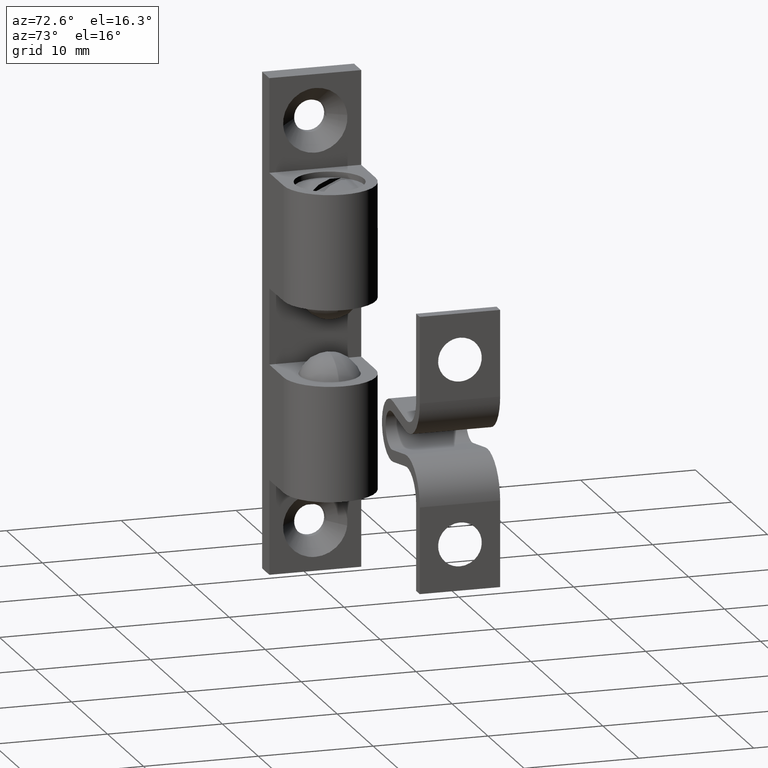
[diagram: clean part render]
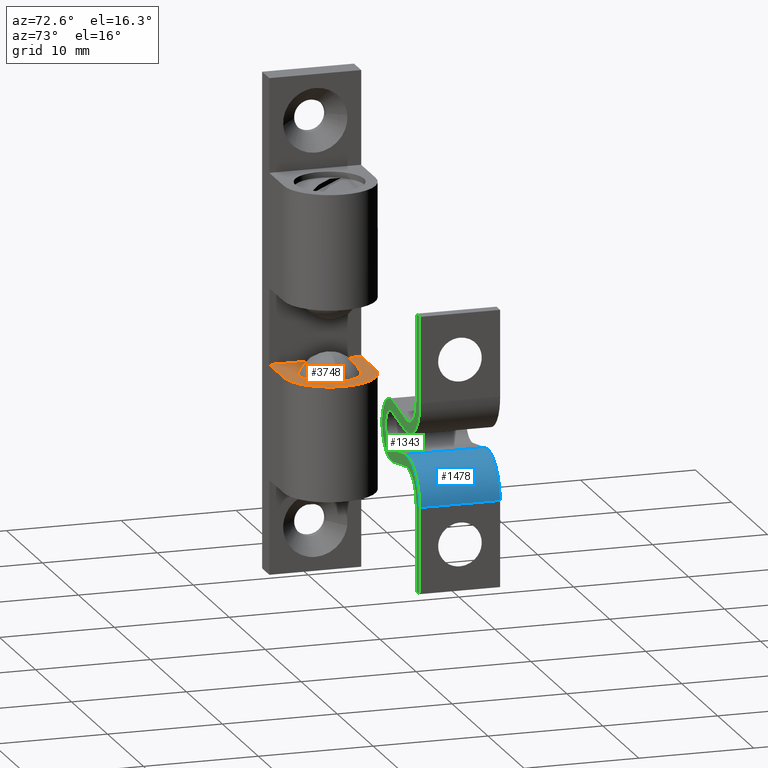
[diagram: same view with three faces highlighted in distinct colors, each labeled with its STEP entity id]
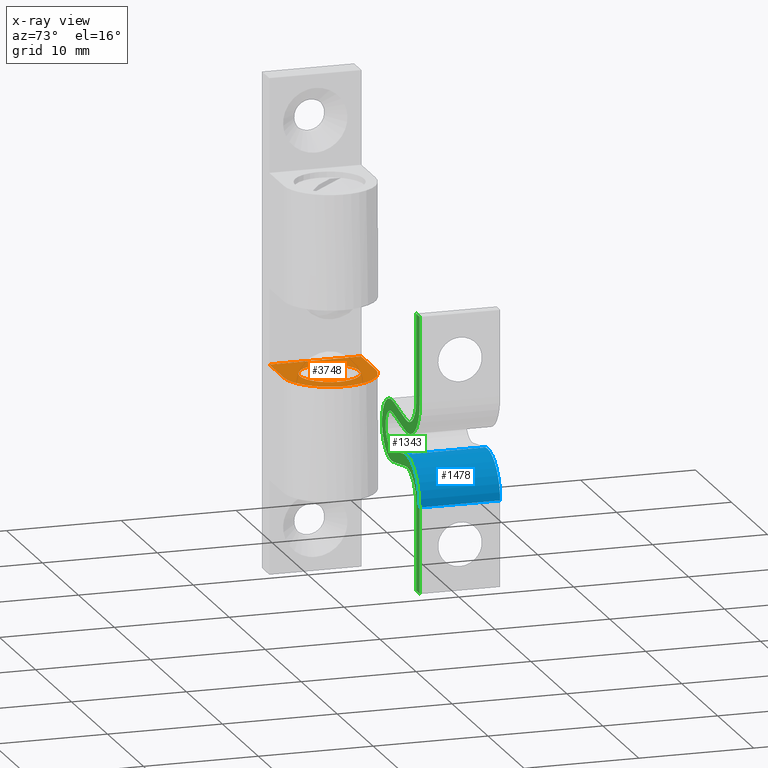
[diagram: x-ray of the same camera — body ghosted, the three highlighted faces saturated]
A machine part, auxiliary view with three faces highlighted in distinct colors.
The next image is the same camera in x-ray (body ghosted, the three faces saturated) — at least one of them is partly hidden behind the body in this view.
Their STEP definitions:

[orange] entity #3748 — the highlighted face is a freeform B-spline surface patch.
#3179=CARTESIAN_POINT('',(8.600153841602456,0.0,-3.300000000000000));
#3180=VERTEX_POINT('',#3179);
#3181=CARTESIAN_POINT('',(3.399846158397545,0.0,-3.300000000000000));
#3182=VERTEX_POINT('',#3181);
#3183=CARTESIAN_POINT('',(8.600153841602456,0.0,-3.300000000000000));
#3184=CARTESIAN_POINT('',(8.600153841602456,-2.600153841602455,-3.300000000000001));
#3185=CARTESIAN_POINT('',(6.0,-2.600153841602455,-3.300000000000000));
#3186=CARTESIAN_POINT('',(3.399846158397545,-2.600153841602455,-3.300000000000001));
#3187=CARTESIAN_POINT('',(3.399846158397545,0.0,-3.300000000000000));
#3195=(BOUNDED_CURVE()B_SPLINE_CURVE(2,(#3183,#3184,#3185,#3186,#3187),.UNSPECIFIED.,.F.,.U.)B_SPLINE_CURVE_WITH_KNOTS((3,2,3),(0.500000000000000,0.750000000000000,1.0),.UNSPECIFIED.)CURVE()GEOMETRIC_REPRESENTATION_ITEM()RATIONAL_B_SPLINE_CURVE((1.0,0.707106781186547,1.0,0.707106781186547,1.0))REPRESENTATION_ITEM(''));
#3196=EDGE_CURVE('',#3180,#3182,#3195,.T.);
#3198=CARTESIAN_POINT('',(3.399846158397545,0.0,-3.300000000000000));
#3199=CARTESIAN_POINT('',(3.399846158397545,2.600153841602455,-3.300000000000001));
#3200=CARTESIAN_POINT('',(6.0,2.600153841602455,-3.300000000000000));
#3201=CARTESIAN_POINT('',(8.600153841602456,2.600153841602455,-3.300000000000001));
#3202=CARTESIAN_POINT('',(8.600153841602456,0.0,-3.300000000000000));
#3210=(BOUNDED_CURVE()B_SPLINE_CURVE(2,(#3198,#3199,#3200,#3201,#3202),.UNSPECIFIED.,.F.,.U.)B_SPLINE_CURVE_WITH_KNOTS((3,2,3),(0.0,0.250000000000000,0.500000000000000),.UNSPECIFIED.)CURVE()GEOMETRIC_REPRESENTATION_ITEM()RATIONAL_B_SPLINE_CURVE((1.0,0.707106781186547,1.0,0.707106781186547,1.0))REPRESENTATION_ITEM(''));
#3211=EDGE_CURVE('',#3182,#3180,#3210,.T.);
#3352=CARTESIAN_POINT('',(2.0,4.0,-3.300000000000000));
#3353=VERTEX_POINT('',#3352);
#3366=CARTESIAN_POINT('',(2.0,-4.0,-3.300000000000000));
#3367=VERTEX_POINT('',#3366);
#3373=CARTESIAN_POINT('',(2.0,-4.0,-3.300000000000000));
#3374=CARTESIAN_POINT('',(2.0,4.0,-3.300000000000000));
#3375=QUASI_UNIFORM_CURVE('',1,(#3373,#3374),.UNSPECIFIED.,.F.,.U.);
#3376=EDGE_CURVE('',#3367,#3353,#3375,.T.);
#3435=CARTESIAN_POINT('',(6.0,4.0,-3.300000000000000));
#3436=VERTEX_POINT('',#3435);
#3437=CARTESIAN_POINT('',(6.0,-4.0,-3.300000000000000));
#3438=VERTEX_POINT('',#3437);
#3439=CARTESIAN_POINT('',(6.0,4.0,-3.300000000000000));
#3440=CARTESIAN_POINT('',(10.000000000000002,4.000000000000000,-3.300000000000000));
#3441=CARTESIAN_POINT('',(10.0,0.0,-3.300000000000000));
#3442=CARTESIAN_POINT('',(10.000000000000002,-4.000000000000000,-3.300000000000000));
#3443=CARTESIAN_POINT('',(6.0,-4.0,-3.300000000000000));
#3451=(BOUNDED_CURVE()B_SPLINE_CURVE(2,(#3439,#3440,#3441,#3442,#3443),.UNSPECIFIED.,.F.,.U.)B_SPLINE_CURVE_WITH_KNOTS((3,2,3),(0.0,0.500000000000000,1.0),.UNSPECIFIED.)CURVE()GEOMETRIC_REPRESENTATION_ITEM()RATIONAL_B_SPLINE_CURVE((1.0,0.707106781186548,1.0,0.707106781186548,1.0))REPRESENTATION_ITEM(''));
#3452=EDGE_CURVE('',#3436,#3438,#3451,.T.);
#3555=CARTESIAN_POINT('',(2.0,4.0,-3.300000000000000));
#3556=CARTESIAN_POINT('',(6.0,4.0,-3.300000000000000));
#3557=QUASI_UNIFORM_CURVE('',1,(#3555,#3556),.UNSPECIFIED.,.F.,.U.);
#3558=EDGE_CURVE('',#3353,#3436,#3557,.T.);
#3680=CARTESIAN_POINT('',(2.0,-4.0,-3.300000000000000));
#3681=CARTESIAN_POINT('',(6.0,-4.0,-3.300000000000000));
#3682=QUASI_UNIFORM_CURVE('',1,(#3680,#3681),.UNSPECIFIED.,.F.,.U.);
#3683=EDGE_CURVE('',#3367,#3438,#3682,.T.);
#3733=CARTESIAN_POINT('',(1.600400015505557,-4.399599984494448,-3.300000000000000));
#3734=CARTESIAN_POINT('',(10.399600199071070,-4.399599984494448,-3.300000000000000));
#3735=CARTESIAN_POINT('',(1.600400015505557,4.399600199071169,-3.300000000000000));
#3736=CARTESIAN_POINT('',(10.399600199071070,4.399600199071169,-3.300000000000000));
#3737=B_SPLINE_SURFACE_WITH_KNOTS('',1,1,((#3733,#3735),(#3734,#3736)),.UNSPECIFIED.,.F.,.F.,.U.,(2,2),(2,2),(0.0,8.799200183565510),(0.0,8.799200183565617),.UNSPECIFIED.);
#3738=ORIENTED_EDGE('',*,*,#3452,.F.);
#3739=ORIENTED_EDGE('',*,*,#3558,.F.);
#3740=ORIENTED_EDGE('',*,*,#3376,.F.);
#3741=ORIENTED_EDGE('',*,*,#3683,.T.);
#3742=EDGE_LOOP('',(#3738,#3739,#3740,#3741));
#3743=FACE_OUTER_BOUND('',#3742,.T.);
#3744=ORIENTED_EDGE('',*,*,#3211,.T.);
#3745=ORIENTED_EDGE('',*,*,#3196,.T.);
#3746=EDGE_LOOP('',(#3744,#3745));
#3747=FACE_BOUND('',#3746,.T.);
#3748=ADVANCED_FACE('',(#3743,#3747),#3737,.T.);

[blue] entity #1478 — the highlighted face is a freeform B-spline surface patch.
#1047=CARTESIAN_POINT('',(38.133523411589302,3.500000000000060,-1.046990580414320));
#1048=VERTEX_POINT('',#1047);
#1054=CARTESIAN_POINT('',(42.205122876470597,3.500000000000060,-4.500000000000000));
#1055=VERTEX_POINT('',#1054);
#1056=CARTESIAN_POINT('',(42.205122876470597,3.500000000000060,-4.500000000000000));
#1057=CARTESIAN_POINT('',(42.205122876470604,3.500000000000059,-2.879077764536162));
#1058=CARTESIAN_POINT('',(40.968903107954588,3.500000000000060,-1.830674417845910));
#1059=CARTESIAN_POINT('',(39.732683339438587,3.500000000000059,-0.782271071155658));
#1060=CARTESIAN_POINT('',(38.133523411589302,3.500000000000060,-1.046990580414322));
#1068=(BOUNDED_CURVE()B_SPLINE_CURVE(2,(#1056,#1057,#1058,#1059,#1060),.UNSPECIFIED.,.F.,.U.)B_SPLINE_CURVE_WITH_KNOTS((3,2,3),(0.0,0.500000000000000,1.0),.UNSPECIFIED.)CURVE()GEOMETRIC_REPRESENTATION_ITEM()RATIONAL_B_SPLINE_CURVE((1.0,0.907412351649615,1.0,0.907412351649615,1.0))REPRESENTATION_ITEM(''));
#1069=EDGE_CURVE('',#1055,#1048,#1068,.T.);
#1255=CARTESIAN_POINT('',(42.205122876470597,-3.499999999999835,-4.500000000000000));
#1256=VERTEX_POINT('',#1255);
#1262=CARTESIAN_POINT('',(38.133523411589302,-3.499999999999835,-1.046990580414320));
#1263=VERTEX_POINT('',#1262);
#1264=CARTESIAN_POINT('',(42.205122876470597,-3.499999999999835,-4.500000000000000));
#1265=CARTESIAN_POINT('',(42.205122876470604,-3.499999999999836,-2.879077764536162));
#1266=CARTESIAN_POINT('',(40.968903107954588,-3.499999999999835,-1.830674417845910));
#1267=CARTESIAN_POINT('',(39.732683339438587,-3.499999999999836,-0.782271071155658));
#1268=CARTESIAN_POINT('',(38.133523411589302,-3.499999999999835,-1.046990580414322));
#1276=(BOUNDED_CURVE()B_SPLINE_CURVE(2,(#1264,#1265,#1266,#1267,#1268),.UNSPECIFIED.,.F.,.U.)B_SPLINE_CURVE_WITH_KNOTS((3,2,3),(0.0,0.500000000000000,1.0),.UNSPECIFIED.)CURVE()GEOMETRIC_REPRESENTATION_ITEM()RATIONAL_B_SPLINE_CURVE((1.0,0.907412351649615,1.0,0.907412351649615,1.0))REPRESENTATION_ITEM(''));
#1277=EDGE_CURVE('',#1256,#1263,#1276,.T.);
#1446=CARTESIAN_POINT('',(38.133523411589302,-3.499999999999835,-1.046990580414320));
#1447=CARTESIAN_POINT('',(38.133523411589302,3.500000000000060,-1.046990580414320));
#1448=QUASI_UNIFORM_CURVE('',1,(#1446,#1447),.UNSPECIFIED.,.F.,.U.);
#1449=EDGE_CURVE('',#1263,#1048,#1448,.T.);
#1454=CARTESIAN_POINT('',(42.204989607195202,-3.674999999999833,-4.530542874244306));
#1455=CARTESIAN_POINT('',(42.204989607195202,3.679375000000058,-4.530542874244306));
#1456=CARTESIAN_POINT('',(42.243387262624502,-3.674999999999835,-0.130607370469302));
#1457=CARTESIAN_POINT('',(42.243387262624502,3.679375000000059,-0.130607370469302));
#1458=CARTESIAN_POINT('',(37.947584227687237,-3.674999999999833,-1.082963975080233));
#1459=CARTESIAN_POINT('',(37.947584227687237,3.679375000000058,-1.082963975080233));
#1467=(BOUNDED_SURFACE()B_SPLINE_SURFACE(1,2,((#1454,#1456,#1458),(#1455,#1457,#1459)),.UNSPECIFIED.,.F.,.F.,.U.)B_SPLINE_SURFACE_WITH_KNOTS((2,2),(3,3),(0.0,7.354374999999893),(0.0,6.752798371445969),.UNSPECIFIED.)GEOMETRIC_REPRESENTATION_ITEM()RATIONAL_B_SPLINE_SURFACE(((1.0,0.622514636637620,1.0),(1.0,0.622514636637620,1.0)))REPRESENTATION_ITEM('')SURFACE());
#1468=ORIENTED_EDGE('',*,*,#1069,.T.);
#1469=ORIENTED_EDGE('',*,*,#1449,.F.);
#1470=ORIENTED_EDGE('',*,*,#1277,.F.);
#1471=CARTESIAN_POINT('',(42.205122876470597,-3.499999999999835,-4.500000000000000));
#1472=CARTESIAN_POINT('',(42.205122876470597,3.500000000000060,-4.500000000000000));
#1473=QUASI_UNIFORM_CURVE('',1,(#1471,#1472),.UNSPECIFIED.,.F.,.U.);
#1474=EDGE_CURVE('',#1256,#1055,#1473,.T.);
#1475=ORIENTED_EDGE('',*,*,#1474,.T.);
#1476=EDGE_LOOP('',(#1468,#1469,#1470,#1475));
#1477=FACE_OUTER_BOUND('',#1476,.T.);
#1478=ADVANCED_FACE('',(#1477),#1467,.T.);

[green] entity #1343 — the highlighted face is a freeform B-spline surface patch.
#1160=CARTESIAN_POINT('',(31.180646921177171,-3.499999999999885,13.198799953483350));
#1161=CARTESIAN_POINT('',(42.729598970913777,-3.499999999999885,13.198799953483350));
#1162=CARTESIAN_POINT('',(31.180646921177171,-3.499999999999885,-13.198800597213509));
#1163=CARTESIAN_POINT('',(42.729598970913777,-3.499999999999885,-13.198800597213509));
#1164=B_SPLINE_SURFACE_WITH_KNOTS('',1,1,((#1160,#1162),(#1161,#1163)),.UNSPECIFIED.,.F.,.F.,.U.,(2,2),(2,2),(0.0,11.548952049736609),(0.0,26.397600550696851),.UNSPECIFIED.);
#1165=CARTESIAN_POINT('',(41.205122876470497,-3.499999999999835,12.0));
#1166=VERTEX_POINT('',#1165);
#1167=CARTESIAN_POINT('',(41.205122876470597,-3.499999999999835,4.500000000000000));
#1168=VERTEX_POINT('',#1167);
#1169=CARTESIAN_POINT('',(41.205122876470497,-3.499999999999835,12.0));
#1170=CARTESIAN_POINT('',(41.205122876470597,-3.499999999999835,4.500000000000000));
#1171=QUASI_UNIFORM_CURVE('',1,(#1169,#1170),.UNSPECIFIED.,.F.,.U.);
#1172=EDGE_CURVE('',#1166,#1168,#1171,.T.);
#1173=ORIENTED_EDGE('',*,*,#1172,.T.);
#1174=CARTESIAN_POINT('',(38.296837544412497,-3.499999999999835,2.033564700295965));
#1175=VERTEX_POINT('',#1174);
#1176=CARTESIAN_POINT('',(38.296837544412497,-3.499999999999835,2.033564700295950));
#1177=CARTESIAN_POINT('',(39.439094635733433,-3.499999999999836,1.844479336539745));
#1178=CARTESIAN_POINT('',(40.322108756102011,-3.499999999999835,2.593338869889925));
#1179=CARTESIAN_POINT('',(41.205122876470597,-3.499999999999836,3.342198403240105));
#1180=CARTESIAN_POINT('',(41.205122876470597,-3.499999999999835,4.500000000000000));
#1188=(BOUNDED_CURVE()B_SPLINE_CURVE(2,(#1176,#1177,#1178,#1179,#1180),.UNSPECIFIED.,.F.,.U.)B_SPLINE_CURVE_WITH_KNOTS((3,2,3),(0.0,0.500000000000000,1.0),.UNSPECIFIED.)CURVE()GEOMETRIC_REPRESENTATION_ITEM()RATIONAL_B_SPLINE_CURVE((1.0,0.907412351649614,1.0,0.907412351649614,1.0))REPRESENTATION_ITEM(''));
#1189=EDGE_CURVE('',#1175,#1168,#1188,.T.);
#1190=ORIENTED_EDGE('',*,*,#1189,.F.);
#1191=CARTESIAN_POINT('',(34.787904876470598,-3.499999999999835,2.614422000000000));
#1192=VERTEX_POINT('',#1191);
#1193=CARTESIAN_POINT('',(38.296837544412497,-3.499999999999835,2.033564700295965));
#1194=CARTESIAN_POINT('',(34.787904876470598,-3.499999999999835,2.614422000000000));
#1195=QUASI_UNIFORM_CURVE('',1,(#1193,#1194),.UNSPECIFIED.,.F.,.U.);
#1196=EDGE_CURVE('',#1175,#1192,#1195,.T.);
#1197=ORIENTED_EDGE('',*,*,#1196,.T.);
#1198=CARTESIAN_POINT('',(34.787904746669447,-3.499999999999835,-2.614421021486815));
#1199=VERTEX_POINT('',#1198);
#1200=CARTESIAN_POINT('',(34.787904876470591,-3.499999999999835,2.614421999999948));
#1201=CARTESIAN_POINT('',(33.081431906921630,-3.499999999999835,2.896905412659801));
#1202=CARTESIAN_POINT('',(32.136004770772630,-3.499999999999835,1.448452995608327));
#1203=CARTESIAN_POINT('',(31.190577634623622,-3.499999999999835,0.000000578556852));
#1204=CARTESIAN_POINT('',(32.136004698859672,-3.499999999999835,-1.448451885433312));
#1205=CARTESIAN_POINT('',(33.081431763095722,-3.499999999999835,-2.896904349423473));
#1206=CARTESIAN_POINT('',(34.787904746669447,-3.499999999999835,-2.614421021486814));
#1214=(BOUNDED_CURVE()B_SPLINE_CURVE(2,(#1200,#1201,#1202,#1203,#1204,#1205,#1206),.UNSPECIFIED.,.F.,.U.)B_SPLINE_CURVE_WITH_KNOTS((3,2,2,3),(0.0,0.333333333333333,0.666666666666667,1.0),.UNSPECIFIED.)CURVE()GEOMETRIC_REPRESENTATION_ITEM()RATIONAL_B_SPLINE_CURVE((1.0,0.837403089406339,1.0,0.837403089406339,1.0,0.837403089406339,1.0))REPRESENTATION_ITEM(''));
#1215=EDGE_CURVE('',#1192,#1199,#1214,.T.);
#1216=ORIENTED_EDGE('',*,*,#1215,.T.);
#1217=CARTESIAN_POINT('',(38.296837876470647,-3.499999999999835,-2.033565000000000));
#1218=VERTEX_POINT('',#1217);
#1219=CARTESIAN_POINT('',(34.787904746669447,-3.499999999999835,-2.614421021486815));
#1220=CARTESIAN_POINT('',(38.296837876470647,-3.499999999999835,-2.033565000000000));
#1221=QUASI_UNIFORM_CURVE('',1,(#1219,#1220),.UNSPECIFIED.,.F.,.U.);
#1222=EDGE_CURVE('',#1199,#1218,#1221,.T.);
#1223=ORIENTED_EDGE('',*,*,#1222,.T.);
#1224=CARTESIAN_POINT('',(41.205122876470597,-3.499999999999835,-4.500000000000000));
#1225=VERTEX_POINT('',#1224);
#1226=CARTESIAN_POINT('',(41.205122876470597,-3.499999999999835,-4.500000000000000));
#1227=CARTESIAN_POINT('',(41.205122876470597,-3.499999999999835,-3.342198487845116));
#1228=CARTESIAN_POINT('',(40.322108862361802,-3.499999999999835,-2.593338960005880));
#1229=CARTESIAN_POINT('',(39.439094848253006,-3.499999999999835,-1.844479432166645));
#1230=CARTESIAN_POINT('',(38.296837876470647,-3.499999999999835,-2.033565000000000));
#1238=(BOUNDED_CURVE()B_SPLINE_CURVE(2,(#1226,#1227,#1228,#1229,#1230),.UNSPECIFIED.,.F.,.U.)B_SPLINE_CURVE_WITH_KNOTS((3,2,3),(0.0,0.500000000000000,1.0),.UNSPECIFIED.)CURVE()GEOMETRIC_REPRESENTATION_ITEM()RATIONAL_B_SPLINE_CURVE((1.0,0.907412363359812,1.0,0.907412363359812,1.0))REPRESENTATION_ITEM(''));
#1239=EDGE_CURVE('',#1225,#1218,#1238,.T.);
#1240=ORIENTED_EDGE('',*,*,#1239,.F.);
#1241=CARTESIAN_POINT('',(41.205122876470497,-3.499999999999835,-12.0));
#1242=VERTEX_POINT('',#1241);
#1243=CARTESIAN_POINT('',(41.205122876470597,-3.499999999999835,-4.500000000000000));
#1244=CARTESIAN_POINT('',(41.205122876470497,-3.499999999999835,-12.0));
#1245=QUASI_UNIFORM_CURVE('',1,(#1243,#1244),.UNSPECIFIED.,.F.,.U.);
#1246=EDGE_CURVE('',#1225,#1242,#1245,.T.);
#1247=ORIENTED_EDGE('',*,*,#1246,.T.);
#1248=CARTESIAN_POINT('',(42.205122876470597,-3.499999999999835,-12.0));
#1249=VERTEX_POINT('',#1248);
#1250=CARTESIAN_POINT('',(41.205122876470497,-3.499999999999835,-12.0));
#1251=CARTESIAN_POINT('',(42.205122876470597,-3.499999999999835,-12.0));
#1252=QUASI_UNIFORM_CURVE('',1,(#1250,#1251),.UNSPECIFIED.,.F.,.U.);
#1253=EDGE_CURVE('',#1242,#1249,#1252,.T.);
#1254=ORIENTED_EDGE('',*,*,#1253,.T.);
#1255=CARTESIAN_POINT('',(42.205122876470597,-3.499999999999835,-4.500000000000000));
#1256=VERTEX_POINT('',#1255);
#1257=CARTESIAN_POINT('',(42.205122876470597,-3.499999999999835,-12.0));
#1258=CARTESIAN_POINT('',(42.205122876470597,-3.499999999999835,-4.500000000000000));
#1259=QUASI_UNIFORM_CURVE('',1,(#1257,#1258),.UNSPECIFIED.,.F.,.U.);
#1260=EDGE_CURVE('',#1249,#1256,#1259,.T.);
#1261=ORIENTED_EDGE('',*,*,#1260,.T.);
#1262=CARTESIAN_POINT('',(38.133523411589302,-3.499999999999835,-1.046990580414320));
#1263=VERTEX_POINT('',#1262);
#1264=CARTESIAN_POINT('',(42.205122876470597,-3.499999999999835,-4.500000000000000));
#1265=CARTESIAN_POINT('',(42.205122876470604,-3.499999999999836,-2.879077764536162));
#1266=CARTESIAN_POINT('',(40.968903107954588,-3.499999999999835,-1.830674417845910));
#1267=CARTESIAN_POINT('',(39.732683339438587,-3.499999999999836,-0.782271071155658));
#1268=CARTESIAN_POINT('',(38.133523411589302,-3.499999999999835,-1.046990580414322));
#1276=(BOUNDED_CURVE()B_SPLINE_CURVE(2,(#1264,#1265,#1266,#1267,#1268),.UNSPECIFIED.,.F.,.U.)B_SPLINE_CURVE_WITH_KNOTS((3,2,3),(0.0,0.500000000000000,1.0),.UNSPECIFIED.)CURVE()GEOMETRIC_REPRESENTATION_ITEM()RATIONAL_B_SPLINE_CURVE((1.0,0.907412351649615,1.0,0.907412351649615,1.0))REPRESENTATION_ITEM(''));
#1277=EDGE_CURVE('',#1256,#1263,#1276,.T.);
#1278=ORIENTED_EDGE('',*,*,#1277,.T.);
#1279=CARTESIAN_POINT('',(34.624589138554548,-3.499999999999835,-1.627847287688775));
#1280=VERTEX_POINT('',#1279);
#1281=CARTESIAN_POINT('',(38.133523411589302,-3.499999999999835,-1.046990580414320));
#1282=CARTESIAN_POINT('',(34.624589138554548,-3.499999999999835,-1.627847287688775));
#1283=QUASI_UNIFORM_CURVE('',1,(#1281,#1282),.UNSPECIFIED.,.F.,.U.);
#1284=EDGE_CURVE('',#1263,#1280,#1283,.T.);
#1285=ORIENTED_EDGE('',*,*,#1284,.T.);
#1286=CARTESIAN_POINT('',(34.624588687012697,-3.499999999999835,1.627847362434905));
#1287=VERTEX_POINT('',#1286);
#1288=CARTESIAN_POINT('',(34.624588687012697,-3.499999999999835,1.627847362434907));
#1289=CARTESIAN_POINT('',(33.562067684601459,-3.499999999999835,1.803733222716818));
#1290=CARTESIAN_POINT('',(32.973405569913432,-3.499999999999835,0.901866474719571));
#1291=CARTESIAN_POINT('',(32.384743455225397,-3.499999999999835,-0.000000273277676));
#1292=CARTESIAN_POINT('',(32.973405820078497,-3.499999999999835,-0.901866857988336));
#1293=CARTESIAN_POINT('',(33.562068184931590,-3.499999999999835,-1.803733442698995));
#1294=CARTESIAN_POINT('',(34.624589138554548,-3.499999999999835,-1.627847287688779));
#1302=(BOUNDED_CURVE()B_SPLINE_CURVE(2,(#1288,#1289,#1290,#1291,#1292,#1293,#1294),.UNSPECIFIED.,.F.,.U.)B_SPLINE_CURVE_WITH_KNOTS((3,2,2,3),(0.0,0.333333333333333,0.666666666666667,1.0),.UNSPECIFIED.)CURVE()GEOMETRIC_REPRESENTATION_ITEM()RATIONAL_B_SPLINE_CURVE((1.0,0.837403068659971,1.0,0.837403068659971,1.0,0.837403068659971,1.0))REPRESENTATION_ITEM(''));
#1303=EDGE_CURVE('',#1287,#1280,#1302,.T.);
#1304=ORIENTED_EDGE('',*,*,#1303,.F.);
#1305=CARTESIAN_POINT('',(38.133523876470498,-3.499999999999835,1.046991000000012));
#1306=VERTEX_POINT('',#1305);
#1307=CARTESIAN_POINT('',(34.624588687012697,-3.499999999999835,1.627847362434905));
#1308=CARTESIAN_POINT('',(38.133523876470498,-3.499999999999835,1.046991000000012));
#1309=QUASI_UNIFORM_CURVE('',1,(#1307,#1308),.UNSPECIFIED.,.F.,.U.);
#1310=EDGE_CURVE('',#1287,#1306,#1309,.T.);
#1311=ORIENTED_EDGE('',*,*,#1310,.T.);
#1312=CARTESIAN_POINT('',(42.205122876470597,-3.499999999999835,4.500000000000000));
#1313=VERTEX_POINT('',#1312);
#1314=CARTESIAN_POINT('',(38.133523876470498,-3.499999999999835,1.046991000000012));
#1315=CARTESIAN_POINT('',(39.732683636965831,-3.499999999999835,0.782271205033243));
#1316=CARTESIAN_POINT('',(40.968903256718207,-3.499999999999835,1.830674544008177));
#1317=CARTESIAN_POINT('',(42.205122876470604,-3.499999999999835,2.879077882983110));
#1318=CARTESIAN_POINT('',(42.205122876470597,-3.499999999999835,4.500000000000000));
#1326=(BOUNDED_CURVE()B_SPLINE_CURVE(2,(#1314,#1315,#1316,#1317,#1318),.UNSPECIFIED.,.F.,.U.)B_SPLINE_CURVE_WITH_KNOTS((3,2,3),(0.0,0.500000000000000,1.0),.UNSPECIFIED.)CURVE()GEOMETRIC_REPRESENTATION_ITEM()RATIONAL_B_SPLINE_CURVE((1.0,0.907412363359807,1.0,0.907412363359807,1.0))REPRESENTATION_ITEM(''));
#1327=EDGE_CURVE('',#1306,#1313,#1326,.T.);
#1328=ORIENTED_EDGE('',*,*,#1327,.T.);
#1329=CARTESIAN_POINT('',(42.205122876470597,-3.499999999999835,12.0));
#1330=VERTEX_POINT('',#1329);
#1331=CARTESIAN_POINT('',(42.205122876470597,-3.499999999999835,4.500000000000000));
#1332=CARTESIAN_POINT('',(42.205122876470597,-3.499999999999835,12.0));
#1333=QUASI_UNIFORM_CURVE('',1,(#1331,#1332),.UNSPECIFIED.,.F.,.U.);
#1334=EDGE_CURVE('',#1313,#1330,#1333,.T.);
#1335=ORIENTED_EDGE('',*,*,#1334,.T.);
#1336=CARTESIAN_POINT('',(42.205122876470597,-3.499999999999835,12.0));
#1337=CARTESIAN_POINT('',(41.205122876470497,-3.499999999999835,12.0));
#1338=QUASI_UNIFORM_CURVE('',1,(#1336,#1337),.UNSPECIFIED.,.F.,.U.);
#1339=EDGE_CURVE('',#1330,#1166,#1338,.T.);
#1340=ORIENTED_EDGE('',*,*,#1339,.T.);
#1341=EDGE_LOOP('',(#1173,#1190,#1197,#1216,#1223,#1240,#1247,#1254,#1261,#1278,#1285,#1304,#1311,#1328,#1335,#1340));
#1342=FACE_OUTER_BOUND('',#1341,.T.);
#1343=ADVANCED_FACE('',(#1342),#1164,.F.);